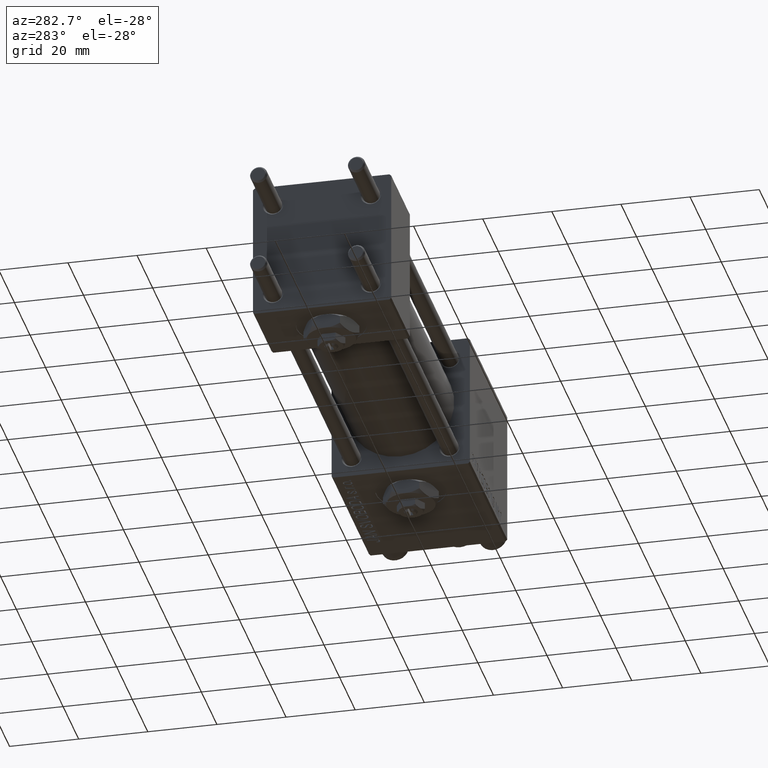
[diagram: clean part render]
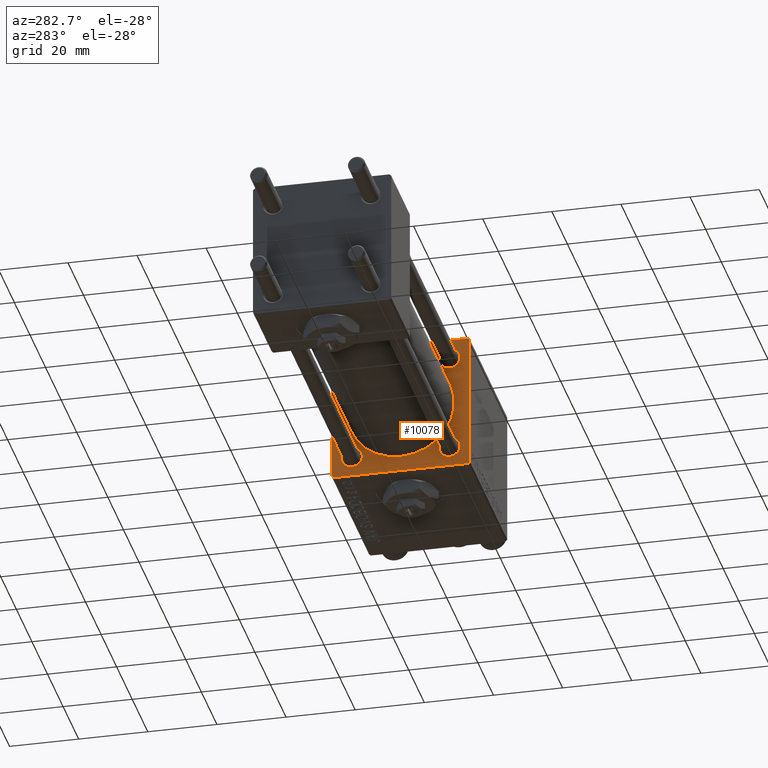
[diagram: same view with one face highlighted and labeled with its STEP entity id]
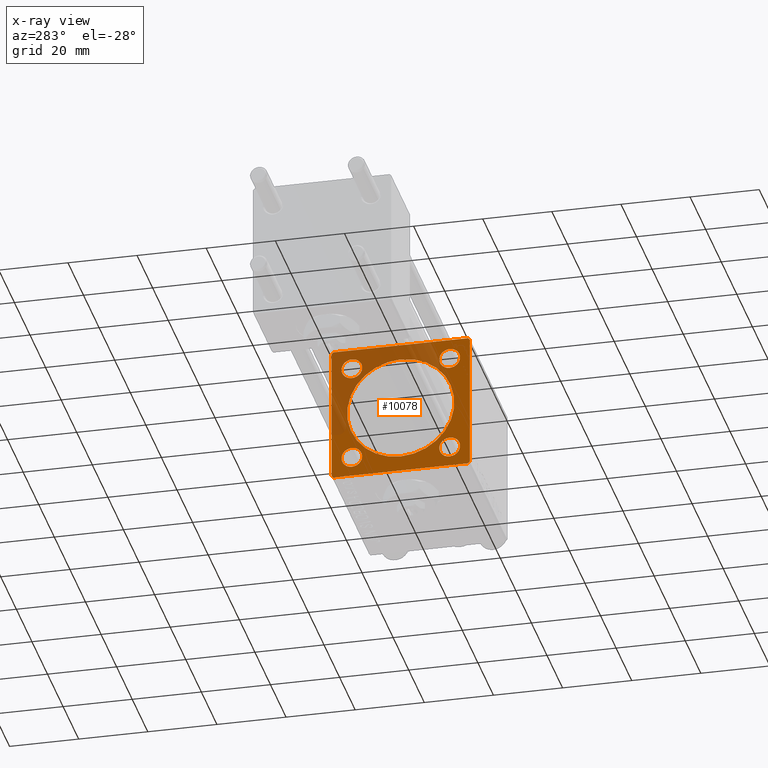
[diagram: x-ray of the same camera — body ghosted, the highlighted face saturated]
A machine part, auxiliary view. The second image highlights one B-rep face of the part: STEP entity #10078.
The next image is the same camera in x-ray: the body ghosted, the highlighted face saturated — about 35% of this face is hidden behind the body in this view.
In plain terms, the highlighted planar face has unit normal (-1, 0, 0).
Its self-contained STEP definition (entity closure, byte-faithful):
#313 = AXIS2_PLACEMENT_3D ( 'NONE', #20421, #36811, #36544 ) ;
#609 = EDGE_CURVE ( 'NONE', #40797, #45834, #18495, .T. ) ;
#758 = ORIENTED_EDGE ( 'NONE', *, *, #11048, .T. ) ;
#824 = EDGE_CURVE ( 'NONE', #47439, #25191, #39012, .T. ) ;
#1140 = EDGE_CURVE ( 'NONE', #14691, #33852, #6674, .T. ) ;
#1811 = CIRCLE ( 'NONE', #25450, 15.50000000000000000 ) ;
#2646 = DIRECTION ( 'NONE',  ( 0.000000000000000000, -1.000000000000000000, 0.000000000000000000 ) ) ;
#2858 = DIRECTION ( 'NONE',  ( -1.000000000000000000, 0.000000000000000000, -0.000000000000000000 ) ) ;
#2872 = DIRECTION ( 'NONE',  ( 1.000000000000000000, 0.000000000000000000, 0.000000000000000000 ) ) ;
#3788 = VERTEX_POINT ( 'NONE', #4808 ) ;
#3902 = CARTESIAN_POINT ( 'NONE',  ( 101.0000000000000000, 14.15000000000000036, -17.15000000000001990 ) ) ;
#3915 = ORIENTED_EDGE ( 'NONE', *, *, #1140, .T. ) ;
#4590 = VECTOR ( 'NONE', #28408, 1000.000000000000000 ) ;
#4808 = CARTESIAN_POINT ( 'NONE',  ( 101.0000000000000000, -14.15000000000000036, -11.14999999999998259 ) ) ;
#4942 = LINE ( 'NONE', #49368, #25706 ) ;
#5099 = EDGE_CURVE ( 'NONE', #27071, #25191, #40253, .T. ) ;
#5137 = DIRECTION ( 'NONE',  ( 0.000000000000000000, 0.000000000000000000, 1.000000000000000000 ) ) ;
#5595 = VERTEX_POINT ( 'NONE', #3902 ) ;
#5596 = DIRECTION ( 'NONE',  ( 0.000000000000000000, 0.000000000000000000, 1.000000000000000000 ) ) ;
#5608 = CARTESIAN_POINT ( 'NONE',  ( 101.0000000000000000, 14.15000000000000036, -11.14999999999998259 ) ) ;
#6617 = LINE ( 'NONE', #35160, #24327 ) ;
#6674 = CIRCLE ( 'NONE', #50574, 15.50000000000000000 ) ;
#7604 = CARTESIAN_POINT ( 'NONE',  ( 101.0000000000000000, 0.000000000000000000, 0.000000000000000000 ) ) ;
#7743 = CARTESIAN_POINT ( 'NONE',  ( 101.0000000000000000, -19.75000000000001066, -19.75000000000001066 ) ) ;
#8391 = DIRECTION ( 'NONE',  ( -0.000000000000000000, -0.7071067811865474617, -0.7071067811865474617 ) ) ;
#8634 = EDGE_LOOP ( 'NONE', ( #24439, #9395 ) ) ;
#8868 = CARTESIAN_POINT ( 'NONE',  ( 101.0000000000000000, 14.15000000000000036, 17.15000000000003411 ) ) ;
#9151 = ORIENTED_EDGE ( 'NONE', *, *, #609, .T. ) ;
#9395 = ORIENTED_EDGE ( 'NONE', *, *, #50367, .T. ) ;
#9939 = DIRECTION ( 'NONE',  ( 0.000000000000000000, 0.000000000000000000, 1.000000000000000000 ) ) ;
#10078 = ADVANCED_FACE ( 'NONE', ( #43573, #27418, #43822, #51501, #48304, #23972 ), #43315, .T. ) ;
#10976 = DIRECTION ( 'NONE',  ( -0.000000000000000000, 0.7071067811865474617, 0.7071067811865474617 ) ) ;
#11048 = EDGE_CURVE ( 'NONE', #23614, #18211, #26359, .T. ) ;
#12208 = CARTESIAN_POINT ( 'NONE',  ( 101.0000000000000000, -14.15000000000000036, -14.15000000000000036 ) ) ;
#12222 = CARTESIAN_POINT ( 'NONE',  ( 101.0000000000000000, 19.99999999999999645, 20.00000000000000000 ) ) ;
#12852 = AXIS2_PLACEMENT_3D ( 'NONE', #27457, #31436, #43865 ) ;
#13262 = DIRECTION ( 'NONE',  ( 1.000000000000000000, 0.000000000000000000, 0.000000000000000000 ) ) ;
#13557 = VECTOR ( 'NONE', #35335, 1000.000000000000000 ) ;
#13699 = ORIENTED_EDGE ( 'NONE', *, *, #824, .T. ) ;
#14073 = ORIENTED_EDGE ( 'NONE', *, *, #50850, .T. ) ;
#14691 = VERTEX_POINT ( 'NONE', #36496 ) ;
#14827 = CIRCLE ( 'NONE', #44361, 3.000000000000018208 ) ;
#15643 = CARTESIAN_POINT ( 'NONE',  ( 101.0000000000000000, 19.75000000000002132, 19.75000000000002132 ) ) ;
#15688 = ORIENTED_EDGE ( 'NONE', *, *, #30912, .T. ) ;
#15810 = EDGE_CURVE ( 'NONE', #27071, #23614, #44189, .T. ) ;
#16419 = CARTESIAN_POINT ( 'NONE',  ( 101.0000000000000000, 19.50000000000001066, -20.00000000000000000 ) ) ;
#16715 = CARTESIAN_POINT ( 'NONE',  ( 101.0000000000000000, 19.99999999999999645, -19.50000000000001421 ) ) ;
#16828 = DIRECTION ( 'NONE',  ( 0.000000000000000000, 0.000000000000000000, 1.000000000000000000 ) ) ;
#17340 = AXIS2_PLACEMENT_3D ( 'NONE', #23974, #27931, #16828 ) ;
#17858 = ORIENTED_EDGE ( 'NONE', *, *, #50023, .T. ) ;
#18130 = EDGE_CURVE ( 'NONE', #24064, #40164, #47599, .T. ) ;
#18134 = CARTESIAN_POINT ( 'NONE',  ( 101.0000000000000000, -14.15000000000000036, 14.15000000000000036 ) ) ;
#18194 = AXIS2_PLACEMENT_3D ( 'NONE', #12208, #20126, #47898 ) ;
#18211 = VERTEX_POINT ( 'NONE', #16715 ) ;
#18495 = CIRCLE ( 'NONE', #42953, 2.999999999999976463 ) ;
#18995 = DIRECTION ( 'NONE',  ( -0.000000000000000000, 0.000000000000000000, 1.000000000000000000 ) ) ;
#19102 = VERTEX_POINT ( 'NONE', #43041 ) ;
#19446 = DIRECTION ( 'NONE',  ( 1.000000000000000000, 0.000000000000000000, 0.000000000000000000 ) ) ;
#19510 = CARTESIAN_POINT ( 'NONE',  ( 101.0000000000000000, -14.15000000000000036, -14.15000000000000036 ) ) ;
#20126 = DIRECTION ( 'NONE',  ( 1.000000000000000000, 0.000000000000000000, 0.000000000000000000 ) ) ;
#20421 = CARTESIAN_POINT ( 'NONE',  ( 101.0000000000000000, 14.15000000000000036, 14.15000000000000036 ) ) ;
#20481 = CARTESIAN_POINT ( 'NONE',  ( 101.0000000000000000, 14.15000000000000036, -14.15000000000000036 ) ) ;
#20748 = CIRCLE ( 'NONE', #18194, 3.000000000000018208 ) ;
#20927 = CARTESIAN_POINT ( 'NONE',  ( 101.0000000000000000, -14.15000000000000036, 14.15000000000000036 ) ) ;
#21062 = VECTOR ( 'NONE', #23586, 1000.000000000000000 ) ;
#21656 = ORIENTED_EDGE ( 'NONE', *, *, #36078, .T. ) ;
#22161 = CARTESIAN_POINT ( 'NONE',  ( 101.0000000000000000, 19.99999999999999645, 19.50000000000004263 ) ) ;
#23223 = DIRECTION ( 'NONE',  ( 0.000000000000000000, 0.000000000000000000, 1.000000000000000000 ) ) ;
#23412 = CARTESIAN_POINT ( 'NONE',  ( 101.0000000000000000, 0.000000000000000000, 0.000000000000000000 ) ) ;
#23503 = EDGE_LOOP ( 'NONE', ( #21656, #3915 ) ) ;
#23536 = CARTESIAN_POINT ( 'NONE',  ( 101.0000000000000000, 0.000000000000000000, 15.50000000000000000 ) ) ;
#23586 = DIRECTION ( 'NONE',  ( 0.000000000000000000, -1.000000000000000000, -8.673617379884035472E-17 ) ) ;
#23614 = VERTEX_POINT ( 'NONE', #22161 ) ;
#23820 = CIRCLE ( 'NONE', #12852, 3.000000000000018208 ) ;
#23972 = FACE_OUTER_BOUND ( 'NONE', #33271, .T. ) ;
#23974 = CARTESIAN_POINT ( 'NONE',  ( 101.0000000000000000, 14.15000000000000036, 14.15000000000000036 ) ) ;
#24064 = VERTEX_POINT ( 'NONE', #29694 ) ;
#24082 = CIRCLE ( 'NONE', #17340, 3.000000000000028866 ) ;
#24158 = VERTEX_POINT ( 'NONE', #5608 ) ;
#24190 = CARTESIAN_POINT ( 'NONE',  ( 101.0000000000000000, -20.00000000000000355, 19.99999999999999645 ) ) ;
#24327 = VECTOR ( 'NONE', #2646, 1000.000000000000000 ) ;
#24439 = ORIENTED_EDGE ( 'NONE', *, *, #41912, .T. ) ;
#24786 = EDGE_CURVE ( 'NONE', #47439, #19102, #52223, .T. ) ;
#25191 = VERTEX_POINT ( 'NONE', #37603 ) ;
#25396 = DIRECTION ( 'NONE',  ( 0.000000000000000000, 0.000000000000000000, -1.000000000000000000 ) ) ;
#25450 = AXIS2_PLACEMENT_3D ( 'NONE', #23412, #19446, #31598 ) ;
#25664 = CARTESIAN_POINT ( 'NONE',  ( 101.0000000000000000, 0.000000000000000000, 0.000000000000000000 ) ) ;
#25706 = VECTOR ( 'NONE', #8391, 1000.000000000000114 ) ;
#25901 = ORIENTED_EDGE ( 'NONE', *, *, #52248, .T. ) ;
#26359 = LINE ( 'NONE', #43545, #13557 ) ;
#26541 = AXIS2_PLACEMENT_3D ( 'NONE', #19510, #2872, #23223 ) ;
#26864 = CARTESIAN_POINT ( 'NONE',  ( 101.0000000000000000, -14.15000000000000036, 11.15000000000002700 ) ) ;
#26976 = EDGE_CURVE ( 'NONE', #3788, #27784, #20748, .T. ) ;
#27071 = VERTEX_POINT ( 'NONE', #32021 ) ;
#27311 = EDGE_LOOP ( 'NONE', ( #17858, #28084 ) ) ;
#27418 = FACE_BOUND ( 'NONE', #27311, .T. ) ;
#27457 = CARTESIAN_POINT ( 'NONE',  ( 101.0000000000000000, 14.15000000000000036, -14.15000000000000036 ) ) ;
#27784 = VERTEX_POINT ( 'NONE', #41090 ) ;
#27931 = DIRECTION ( 'NONE',  ( 1.000000000000000000, 0.000000000000000000, 0.000000000000000000 ) ) ;
#28084 = ORIENTED_EDGE ( 'NONE', *, *, #18130, .T. ) ;
#28408 = DIRECTION ( 'NONE',  ( 0.000000000000000000, 8.673617379884036705E-17, -1.000000000000000000 ) ) ;
#28654 = DIRECTION ( 'NONE',  ( 1.000000000000000000, 0.000000000000000000, 0.000000000000000000 ) ) ;
#28828 = EDGE_CURVE ( 'NONE', #52130, #19102, #39487, .T. ) ;
#29694 = CARTESIAN_POINT ( 'NONE',  ( 101.0000000000000000, 14.15000000000000036, 11.14999999999997016 ) ) ;
#30110 = EDGE_LOOP ( 'NONE', ( #25901, #9151 ) ) ;
#30599 = VERTEX_POINT ( 'NONE', #16419 ) ;
#30605 = VECTOR ( 'NONE', #40232, 1000.000000000000114 ) ;
#30661 = ORIENTED_EDGE ( 'NONE', *, *, #28828, .T. ) ;
#30912 = EDGE_CURVE ( 'NONE', #30599, #52130, #6617, .T. ) ;
#31055 = CARTESIAN_POINT ( 'NONE',  ( 101.0000000000000000, -19.75000000000001421, 19.75000000000001421 ) ) ;
#31436 = DIRECTION ( 'NONE',  ( 1.000000000000000000, 0.000000000000000000, 0.000000000000000000 ) ) ;
#31598 = DIRECTION ( 'NONE',  ( 0.000000000000000000, 0.000000000000000000, -1.000000000000000000 ) ) ;
#32021 = CARTESIAN_POINT ( 'NONE',  ( 101.0000000000000000, 19.50000000000003908, 20.00000000000000000 ) ) ;
#32726 = ORIENTED_EDGE ( 'NONE', *, *, #24786, .F. ) ;
#33271 = EDGE_LOOP ( 'NONE', ( #15688, #30661, #32726, #13699, #48131, #46077, #758, #36560 ) ) ;
#33339 = CIRCLE ( 'NONE', #49382, 2.999999999999976463 ) ;
#33353 = DIRECTION ( 'NONE',  ( 1.000000000000000000, 0.000000000000000000, 0.000000000000000000 ) ) ;
#33852 = VERTEX_POINT ( 'NONE', #23536 ) ;
#34258 = DIRECTION ( 'NONE',  ( 1.000000000000000000, 0.000000000000000000, 0.000000000000000000 ) ) ;
#34279 = EDGE_LOOP ( 'NONE', ( #41996, #14073 ) ) ;
#34524 = VECTOR ( 'NONE', #10976, 1000.000000000000114 ) ;
#35160 = CARTESIAN_POINT ( 'NONE',  ( 101.0000000000000000, 19.99999999999999645, -20.00000000000000000 ) ) ;
#35335 = DIRECTION ( 'NONE',  ( 0.000000000000000000, 0.000000000000000000, -1.000000000000000000 ) ) ;
#36078 = EDGE_CURVE ( 'NONE', #33852, #14691, #1811, .T. ) ;
#36496 = CARTESIAN_POINT ( 'NONE',  ( 101.0000000000000000, 1.898202538678397557E-15, -15.50000000000000000 ) ) ;
#36544 = DIRECTION ( 'NONE',  ( 0.000000000000000000, 0.000000000000000000, 1.000000000000000000 ) ) ;
#36560 = ORIENTED_EDGE ( 'NONE', *, *, #51040, .T. ) ;
#36811 = DIRECTION ( 'NONE',  ( 1.000000000000000000, 0.000000000000000000, 0.000000000000000000 ) ) ;
#37603 = CARTESIAN_POINT ( 'NONE',  ( 101.0000000000000000, -19.50000000000003197, 19.99999999999999645 ) ) ;
#39012 = LINE ( 'NONE', #31055, #34524 ) ;
#39487 = LINE ( 'NONE', #7743, #50386 ) ;
#40164 = VERTEX_POINT ( 'NONE', #8868 ) ;
#40232 = DIRECTION ( 'NONE',  ( 0.000000000000000000, 0.7071067811865474617, -0.7071067811865474617 ) ) ;
#40253 = LINE ( 'NONE', #12222, #21062 ) ;
#40321 = CARTESIAN_POINT ( 'NONE',  ( 101.0000000000000000, -14.15000000000000036, 17.14999999999997726 ) ) ;
#40797 = VERTEX_POINT ( 'NONE', #26864 ) ;
#41090 = CARTESIAN_POINT ( 'NONE',  ( 101.0000000000000000, -14.15000000000000036, -17.15000000000001990 ) ) ;
#41912 = EDGE_CURVE ( 'NONE', #24158, #5595, #23820, .T. ) ;
#41996 = ORIENTED_EDGE ( 'NONE', *, *, #26976, .T. ) ;
#42504 = CARTESIAN_POINT ( 'NONE',  ( 101.0000000000000000, -20.00000000000000355, 19.50000000000002487 ) ) ;
#42953 = AXIS2_PLACEMENT_3D ( 'NONE', #18134, #34258, #9939 ) ;
#43041 = CARTESIAN_POINT ( 'NONE',  ( 101.0000000000000000, -20.00000000000000000, -19.50000000000002487 ) ) ;
#43315 = PLANE ( 'NONE',  #51484 ) ;
#43545 = CARTESIAN_POINT ( 'NONE',  ( 101.0000000000000000, 19.99999999999999645, 20.00000000000000000 ) ) ;
#43573 = FACE_BOUND ( 'NONE', #30110, .T. ) ;
#43822 = FACE_BOUND ( 'NONE', #8634, .T. ) ;
#43865 = DIRECTION ( 'NONE',  ( 0.000000000000000000, 0.000000000000000000, 1.000000000000000000 ) ) ;
#44189 = LINE ( 'NONE', #15643, #30605 ) ;
#44212 = CARTESIAN_POINT ( 'NONE',  ( 101.0000000000000000, -19.50000000000002487, -20.00000000000000000 ) ) ;
#44361 = AXIS2_PLACEMENT_3D ( 'NONE', #20481, #28654, #5137 ) ;
#45834 = VERTEX_POINT ( 'NONE', #40321 ) ;
#46077 = ORIENTED_EDGE ( 'NONE', *, *, #15810, .T. ) ;
#47439 = VERTEX_POINT ( 'NONE', #42504 ) ;
#47599 = CIRCLE ( 'NONE', #313, 3.000000000000028866 ) ;
#47898 = DIRECTION ( 'NONE',  ( 0.000000000000000000, 0.000000000000000000, 1.000000000000000000 ) ) ;
#48131 = ORIENTED_EDGE ( 'NONE', *, *, #5099, .F. ) ;
#48304 = FACE_BOUND ( 'NONE', #23503, .T. ) ;
#49368 = CARTESIAN_POINT ( 'NONE',  ( 101.0000000000000000, 19.75000000000000355, -19.75000000000000355 ) ) ;
#49382 = AXIS2_PLACEMENT_3D ( 'NONE', #20927, #33353, #5596 ) ;
#49468 = CIRCLE ( 'NONE', #26541, 3.000000000000018208 ) ;
#50023 = EDGE_CURVE ( 'NONE', #40164, #24064, #24082, .T. ) ;
#50367 = EDGE_CURVE ( 'NONE', #5595, #24158, #14827, .T. ) ;
#50386 = VECTOR ( 'NONE', #51894, 1000.000000000000114 ) ;
#50574 = AXIS2_PLACEMENT_3D ( 'NONE', #25664, #13262, #25396 ) ;
#50850 = EDGE_CURVE ( 'NONE', #27784, #3788, #49468, .T. ) ;
#51040 = EDGE_CURVE ( 'NONE', #18211, #30599, #4942, .T. ) ;
#51484 = AXIS2_PLACEMENT_3D ( 'NONE', #7604, #2858, #18995 ) ;
#51501 = FACE_BOUND ( 'NONE', #34279, .T. ) ;
#51894 = DIRECTION ( 'NONE',  ( 0.000000000000000000, -0.7071067811865474617, 0.7071067811865474617 ) ) ;
#52130 = VERTEX_POINT ( 'NONE', #44212 ) ;
#52223 = LINE ( 'NONE', #24190, #4590 ) ;
#52248 = EDGE_CURVE ( 'NONE', #45834, #40797, #33339, .T. ) ;